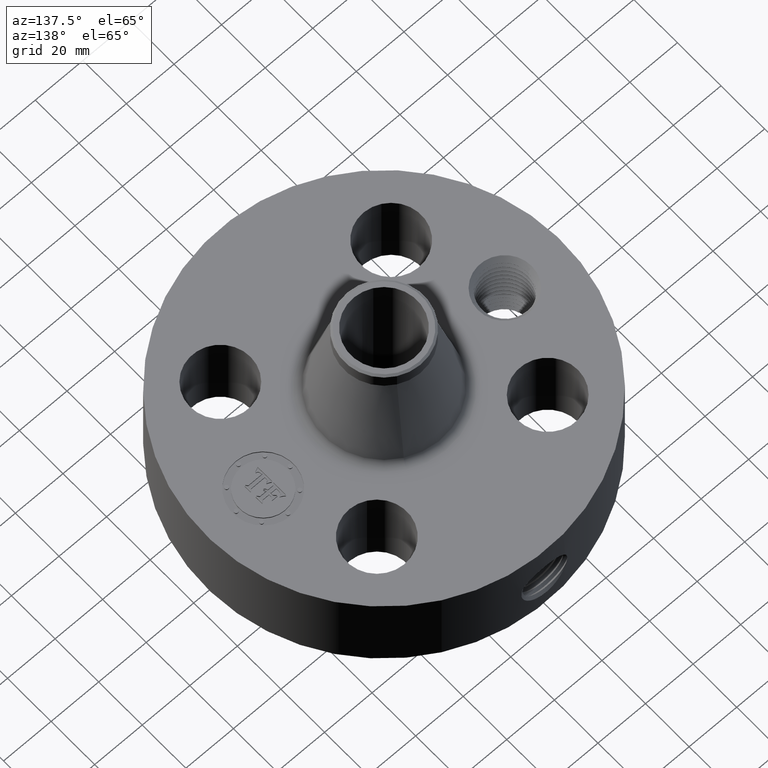
[diagram: clean part render]
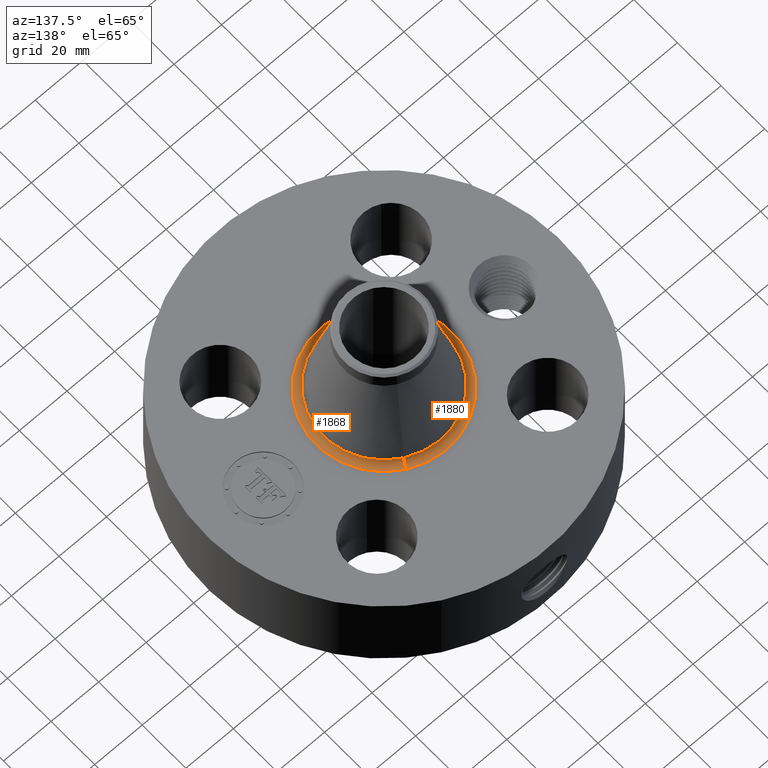
[diagram: same view with one multi-face feature highlighted, each face labeled with its STEP entity id]
A machine part, auxiliary view. The highlighted faces form ONE feature: a constant-radius fillet chain: 2 tangent blend faces with common blend radius 3.048 mm. The faces share edges in the B-rep.
Their STEP definitions:
[1] entity #1880 (Torus):
#493=AXIS2_PLACEMENT_3D('Circle Axis2P3D',#491,#492,$) ;
#1841=AXIS2_PLACEMENT_3D('Torus Axis2P3D',#1838,#1839,#1840) ;
#1845=AXIS2_PLACEMENT_3D('Circle Axis2P3D',#1843,#1844,$) ;
#1859=AXIS2_PLACEMENT_3D('Circle Axis2P3D',#1857,#1858,$) ;
#1871=AXIS2_PLACEMENT_3D('Circle Axis2P3D',#1869,#1870,$) ;
#491=CARTESIAN_POINT('Axis2P3D Location',(0.,0.,1.75000000001)) ;
#495=CARTESIAN_POINT('Vertex',(-0.538790503479,-0.986249401194,1.75000000001)) ;
#497=CARTESIAN_POINT('Vertex',(0.538790503479,0.986249401194,1.75000000001)) ;
#1838=CARTESIAN_POINT('Axis2P3D Location',(0.,0.,1.87000000001)) ;
#1843=CARTESIAN_POINT('Axis2P3D Location',(0.538790503479,0.986249401194,1.87000000001)) ;
#1847=CARTESIAN_POINT('Vertex',(0.48295815861,0.884048979436,1.84105482668)) ;
#1854=CARTESIAN_POINT('Vertex',(-0.48295815861,-0.884048979436,1.84105482668)) ;
#1857=CARTESIAN_POINT('Axis2P3D Location',(-0.538790503479,-0.986249401194,1.87000000001)) ;
#1869=CARTESIAN_POINT('Axis2P3D Location',(0.,0.,1.84105482668)) ;
#492=DIRECTION('Axis2P3D Direction',(0.,0.,-0.0393700787402)) ;
#1839=DIRECTION('Axis2P3D Direction',(0.,0.,-0.0393700787402)) ;
#1840=DIRECTION('Axis2P3D XDirection',(-0.0188750212049,-0.0345504945626,0.)) ;
#1844=DIRECTION('Axis2P3D Direction',(-0.0345504945626,0.0188750212049,0.)) ;
#1858=DIRECTION('Axis2P3D Direction',(0.0345504945626,-0.0188750212049,0.)) ;
#1870=DIRECTION('Axis2P3D Direction',(0.,0.,-0.0393700787402)) ;
#1875=ORIENTED_EDGE('',*,*,#499,.F.) ;
#1876=ORIENTED_EDGE('',*,*,#1861,.T.) ;
#1877=ORIENTED_EDGE('',*,*,#1873,.T.) ;
#1878=ORIENTED_EDGE('',*,*,#1849,.F.) ;
#1880=ADVANCED_FACE('PartBody',(#1879),#1842,.F.) ;
#494=CIRCLE('generated circle',#493,1.12382520349) ;
#1846=CIRCLE('generated circle',#1845,0.12) ;
#1860=CIRCLE('generated circle',#1859,0.12) ;
#1872=CIRCLE('generated circle',#1871,1.00736844353) ;
#1842=TOROIDAL_SURFACE('homeo Torus',#1841,1.12382520349,0.12) ;
#499=EDGE_CURVE('',#496,#498,#494,.T.) ;
#1849=EDGE_CURVE('',#498,#1848,#1846,.T.) ;
#1861=EDGE_CURVE('',#496,#1855,#1860,.T.) ;
#1873=EDGE_CURVE('',#1855,#1848,#1872,.T.) ;
#1874=EDGE_LOOP('',(#1875,#1876,#1877,#1878)) ;
#1879=FACE_OUTER_BOUND('',#1874,.T.) ;
#496=VERTEX_POINT('',#495) ;
#498=VERTEX_POINT('',#497) ;
#1848=VERTEX_POINT('',#1847) ;
#1855=VERTEX_POINT('',#1854) ;
[2] entity #1868 (Torus):
#502=AXIS2_PLACEMENT_3D('Circle Axis2P3D',#500,#501,$) ;
#1841=AXIS2_PLACEMENT_3D('Torus Axis2P3D',#1838,#1839,#1840) ;
#1845=AXIS2_PLACEMENT_3D('Circle Axis2P3D',#1843,#1844,$) ;
#1852=AXIS2_PLACEMENT_3D('Circle Axis2P3D',#1850,#1851,$) ;
#1859=AXIS2_PLACEMENT_3D('Circle Axis2P3D',#1857,#1858,$) ;
#495=CARTESIAN_POINT('Vertex',(-0.538790503479,-0.986249401194,1.75000000001)) ;
#497=CARTESIAN_POINT('Vertex',(0.538790503479,0.986249401194,1.75000000001)) ;
#500=CARTESIAN_POINT('Axis2P3D Location',(0.,0.,1.75000000001)) ;
#1838=CARTESIAN_POINT('Axis2P3D Location',(0.,0.,1.87000000001)) ;
#1843=CARTESIAN_POINT('Axis2P3D Location',(0.538790503479,0.986249401194,1.87000000001)) ;
#1847=CARTESIAN_POINT('Vertex',(0.48295815861,0.884048979436,1.84105482668)) ;
#1850=CARTESIAN_POINT('Axis2P3D Location',(0.,0.,1.84105482668)) ;
#1854=CARTESIAN_POINT('Vertex',(-0.48295815861,-0.884048979436,1.84105482668)) ;
#1857=CARTESIAN_POINT('Axis2P3D Location',(-0.538790503479,-0.986249401194,1.87000000001)) ;
#501=DIRECTION('Axis2P3D Direction',(0.,0.,-0.0393700787402)) ;
#1839=DIRECTION('Axis2P3D Direction',(0.,0.,-0.0393700787402)) ;
#1840=DIRECTION('Axis2P3D XDirection',(-0.0188750212049,-0.0345504945626,0.)) ;
#1844=DIRECTION('Axis2P3D Direction',(-0.0345504945626,0.0188750212049,0.)) ;
#1851=DIRECTION('Axis2P3D Direction',(0.,0.,-0.0393700787402)) ;
#1858=DIRECTION('Axis2P3D Direction',(0.0345504945626,-0.0188750212049,0.)) ;
#1863=ORIENTED_EDGE('',*,*,#504,.F.) ;
#1864=ORIENTED_EDGE('',*,*,#1849,.T.) ;
#1865=ORIENTED_EDGE('',*,*,#1856,.T.) ;
#1866=ORIENTED_EDGE('',*,*,#1861,.F.) ;
#1868=ADVANCED_FACE('PartBody',(#1867),#1842,.F.) ;
#503=CIRCLE('generated circle',#502,1.12382520349) ;
#1846=CIRCLE('generated circle',#1845,0.12) ;
#1853=CIRCLE('generated circle',#1852,1.00736844353) ;
#1860=CIRCLE('generated circle',#1859,0.12) ;
#1842=TOROIDAL_SURFACE('homeo Torus',#1841,1.12382520349,0.12) ;
#504=EDGE_CURVE('',#498,#496,#503,.T.) ;
#1849=EDGE_CURVE('',#498,#1848,#1846,.T.) ;
#1856=EDGE_CURVE('',#1848,#1855,#1853,.T.) ;
#1861=EDGE_CURVE('',#496,#1855,#1860,.T.) ;
#1862=EDGE_LOOP('',(#1863,#1864,#1865,#1866)) ;
#1867=FACE_OUTER_BOUND('',#1862,.T.) ;
#496=VERTEX_POINT('',#495) ;
#498=VERTEX_POINT('',#497) ;
#1848=VERTEX_POINT('',#1847) ;
#1855=VERTEX_POINT('',#1854) ;